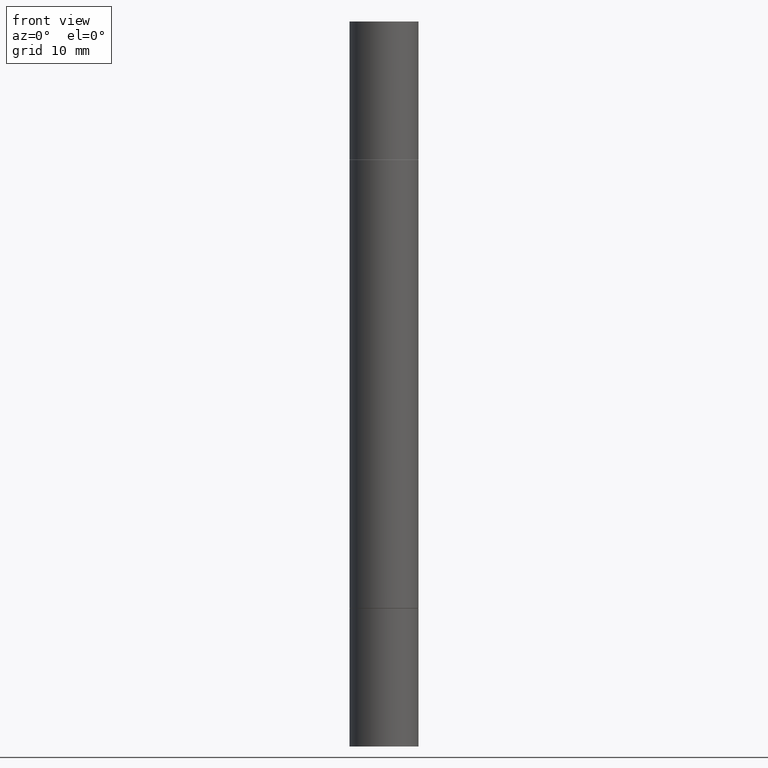
[diagram: clean part render]
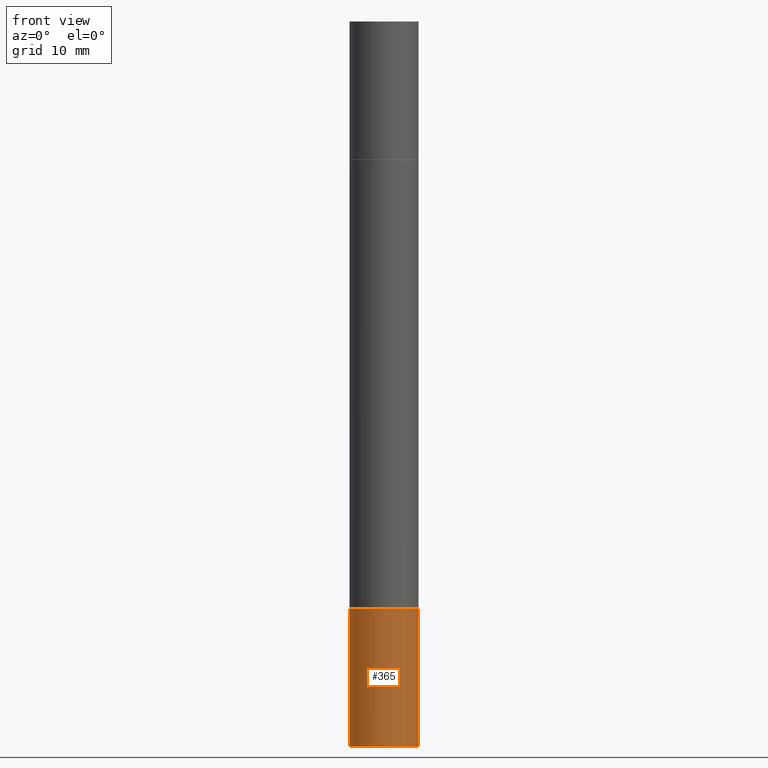
[diagram: same view with one face highlighted and labeled with its STEP entity id]
A machine part, front view. The second image highlights one B-rep face of the part: STEP entity #365.
In plain terms, the highlighted cylindrical surface (edge-blend (fillet) strip) has radius 2.9997 mm, axis along (-0, 0, 1).
Its self-contained STEP definition (entity closure, byte-faithful):
#5 = CIRCLE ( 'NONE', #286, 0.1180999999999999966 ) ;
#9 = VERTEX_POINT ( 'NONE', #351 ) ;
#17 = VECTOR ( 'NONE', #569, 39.37007874015748143 ) ;
#33 = CARTESIAN_POINT ( 'NONE',  ( 0.1180999999999999966, -7.835233272497900762E-15, -2.007900000000000240 ) ) ;
#39 = DIRECTION ( 'NONE',  ( 1.000000000000000000, -6.982962677686266711E-15, 4.876176775795936353E-29 ) ) ;
#108 = LINE ( 'NONE', #355, #17 ) ;
#136 = VECTOR ( 'NONE', #616, 39.37007874015748143 ) ;
#168 = CARTESIAN_POINT ( 'NONE',  ( 4.910256815939136430E-29, -7.010545380263152499E-15, -2.007900000000000240 ) ) ;
#174 = ORIENTED_EDGE ( 'NONE', *, *, #428, .T. ) ;
#195 = LINE ( 'NONE', #399, #136 ) ;
#235 = VERTEX_POINT ( 'NONE', #33 ) ;
#251 = EDGE_CURVE ( 'NONE', #424, #235, #195, .T. ) ;
#283 = ORIENTED_EDGE ( 'NONE', *, *, #251, .T. ) ;
#286 = AXIS2_PLACEMENT_3D ( 'NONE', #478, #538, #431 ) ;
#313 = DIRECTION ( 'NONE',  ( -2.445468806185136597E-29, 3.491481338843145583E-15, 1.000000000000000000 ) ) ;
#317 = CYLINDRICAL_SURFACE ( 'NONE', #437, 0.1180999999999999966 ) ;
#342 = AXIS2_PLACEMENT_3D ( 'NONE', #168, #589, #485 ) ;
#351 = CARTESIAN_POINT ( 'NONE',  ( -0.1180999999999999966, -6.996082301565225720E-15, -2.480300000000000171 ) ) ;
#355 = CARTESIAN_POINT ( 'NONE',  ( -0.1180999999999999966, 8.391509709326782957E-16, -5.809262341591043784E-30 ) ) ;
#364 = CARTESIAN_POINT ( 'NONE',  ( 0.1180999999999999966, -9.484609056967403598E-15, -2.480300000000000171 ) ) ;
#365 = ADVANCED_FACE ( 'NONE', ( #622 ), #317, .T. ) ;
#384 = EDGE_CURVE ( 'NONE', #9, #409, #108, .T. ) ;
#399 = CARTESIAN_POINT ( 'NONE',  ( 0.1180999999999999966, -8.246878922347480654E-16, 5.758764772215000440E-30 ) ) ;
#409 = VERTEX_POINT ( 'NONE', #463 ) ;
#424 = VERTEX_POINT ( 'NONE', #364 ) ;
#428 = EDGE_CURVE ( 'NONE', #9, #424, #5, .T. ) ;
#431 = DIRECTION ( 'NONE',  ( 1.000000000000000000, -6.982962677686273021E-15, 0.000000000000000000 ) ) ;
#437 = AXIS2_PLACEMENT_3D ( 'NONE', #471, #313, #39 ) ;
#463 = CARTESIAN_POINT ( 'NONE',  ( -0.1180999999999999966, -6.996082301565225720E-15, -2.007900000000000240 ) ) ;
#471 = CARTESIAN_POINT ( 'NONE',  ( 0.000000000000000000, 0.000000000000000000, 0.000000000000000000 ) ) ;
#478 = CARTESIAN_POINT ( 'NONE',  ( 6.065496279980994755E-29, -8.659921164732655335E-15, -2.480300000000000171 ) ) ;
#485 = DIRECTION ( 'NONE',  ( 1.000000000000000000, -6.982962677686265133E-15, 0.000000000000000000 ) ) ;
#538 = DIRECTION ( 'NONE',  ( -2.445468806185136597E-29, 3.491481338843145583E-15, 1.000000000000000000 ) ) ;
#542 = ORIENTED_EDGE ( 'NONE', *, *, #384, .F. ) ;
#550 = ORIENTED_EDGE ( 'NONE', *, *, #629, .F. ) ;
#569 = DIRECTION ( 'NONE',  ( -2.445468806185136877E-29, 3.491481338843145188E-15, 1.000000000000000000 ) ) ;
#589 = DIRECTION ( 'NONE',  ( -2.445468806185136597E-29, 3.491481338843145583E-15, 1.000000000000000000 ) ) ;
#616 = DIRECTION ( 'NONE',  ( -2.445468806185136877E-29, 3.491481338843145188E-15, 1.000000000000000000 ) ) ;
#622 = FACE_OUTER_BOUND ( 'NONE', #665, .T. ) ;
#629 = EDGE_CURVE ( 'NONE', #409, #235, #644, .T. ) ;
#644 = CIRCLE ( 'NONE', #342, 0.1180999999999999966 ) ;
#665 = EDGE_LOOP ( 'NONE', ( #542, #174, #283, #550 ) ) ;